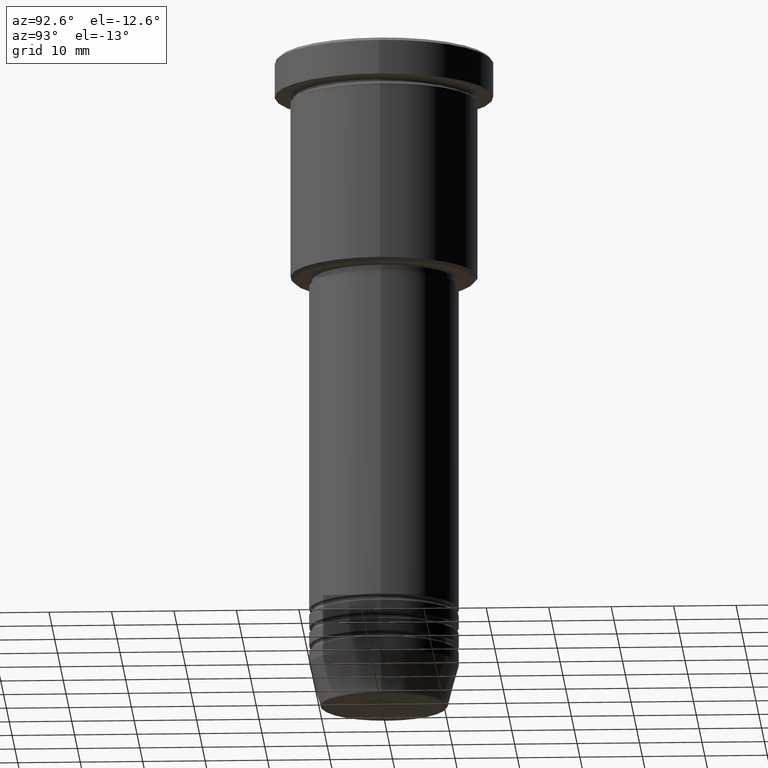
[diagram: clean part render]
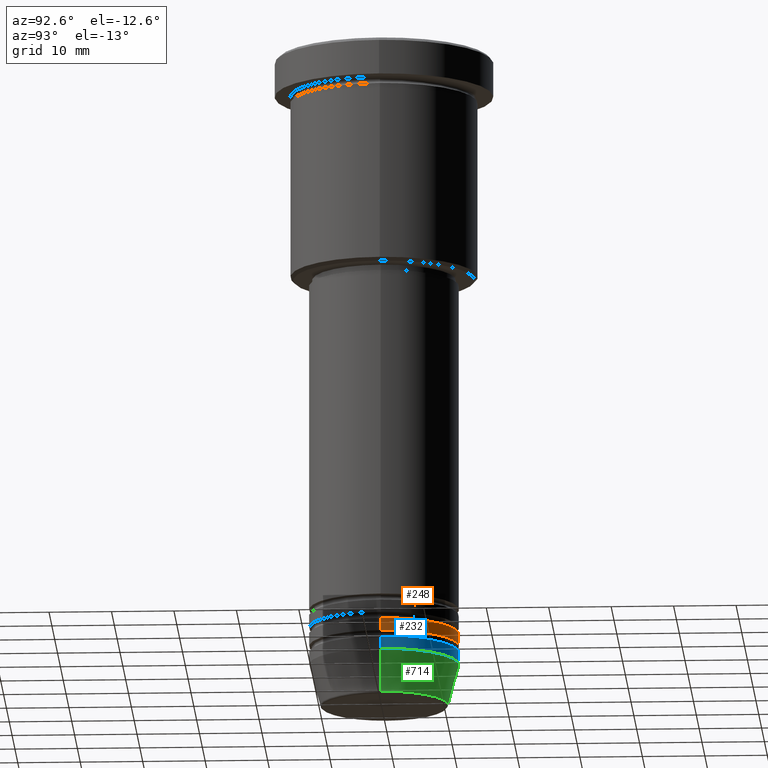
[diagram: same view with three faces highlighted in distinct colors, each labeled with its STEP entity id]
A machine part, auxiliary view with three faces highlighted in distinct colors.
Their STEP definitions:

[orange] entity #248 — the highlighted cylindrical surface (partial cylindrical patch) has radius 12 mm, axis along (-0, -0, 1).
#9 = LINE ( 'NONE', #565, #573 ) ;
#109 = CARTESIAN_POINT ( 'NONE',  ( 12.00000000000000000, 0.000000000000000000, 0.000000000000000000 ) ) ;
#142 = CYLINDRICAL_SURFACE ( 'NONE', #650, 12.00000000000000000 ) ;
#163 = VECTOR ( 'NONE', #380, 1000.000000000000000 ) ;
#172 = EDGE_CURVE ( 'NONE', #918, #391, #1177, .T. ) ;
#246 = CARTESIAN_POINT ( 'NONE',  ( -12.00000000000000000, 1.469576158976823947E-15, -93.99999999999998579 ) ) ;
#248 = ADVANCED_FACE ( 'NONE', ( #959 ), #142, .T. ) ;
#372 = DIRECTION ( 'NONE',  ( -0.000000000000000000, -0.000000000000000000, 1.000000000000000000 ) ) ;
#380 = DIRECTION ( 'NONE',  ( -0.000000000000000000, -0.000000000000000000, 1.000000000000000000 ) ) ;
#391 = VERTEX_POINT ( 'NONE', #246 ) ;
#436 = CARTESIAN_POINT ( 'NONE',  ( -12.00000000000000000, 1.469576158976823947E-15, -95.99999999999997158 ) ) ;
#465 = AXIS2_PLACEMENT_3D ( 'NONE', #828, #1023, #1039 ) ;
#483 = CIRCLE ( 'NONE', #465, 12.00000000000000000 ) ;
#491 = CARTESIAN_POINT ( 'NONE',  ( 0.000000000000000000, 0.000000000000000000, 0.000000000000000000 ) ) ;
#506 = ORIENTED_EDGE ( 'NONE', *, *, #965, .T. ) ;
#565 = CARTESIAN_POINT ( 'NONE',  ( -12.00000000000000000, 1.469576158976823947E-15, 0.000000000000000000 ) ) ;
#573 = VECTOR ( 'NONE', #1119, 1000.000000000000000 ) ;
#592 = DIRECTION ( 'NONE',  ( -0.000000000000000000, -0.000000000000000000, 1.000000000000000000 ) ) ;
#619 = ORIENTED_EDGE ( 'NONE', *, *, #172, .F. ) ;
#625 = VERTEX_POINT ( 'NONE', #436 ) ;
#650 = AXIS2_PLACEMENT_3D ( 'NONE', #491, #592, #879 ) ;
#673 = CARTESIAN_POINT ( 'NONE',  ( 12.00000000000000000, 0.000000000000000000, -93.99999999999998579 ) ) ;
#674 = ORIENTED_EDGE ( 'NONE', *, *, #1134, .F. ) ;
#682 = EDGE_CURVE ( 'NONE', #625, #391, #9, .T. ) ;
#791 = AXIS2_PLACEMENT_3D ( 'NONE', #835, #372, #1102 ) ;
#828 = CARTESIAN_POINT ( 'NONE',  ( 0.000000000000000000, 0.000000000000000000, -95.99999999999997158 ) ) ;
#831 = ORIENTED_EDGE ( 'NONE', *, *, #682, .T. ) ;
#835 = CARTESIAN_POINT ( 'NONE',  ( 0.000000000000000000, 0.000000000000000000, -93.99999999999998579 ) ) ;
#879 = DIRECTION ( 'NONE',  ( 1.000000000000000000, 0.000000000000000000, 0.000000000000000000 ) ) ;
#918 = VERTEX_POINT ( 'NONE', #673 ) ;
#938 = LINE ( 'NONE', #109, #163 ) ;
#959 = FACE_OUTER_BOUND ( 'NONE', #1055, .T. ) ;
#965 = EDGE_CURVE ( 'NONE', #1142, #625, #483, .T. ) ;
#1023 = DIRECTION ( 'NONE',  ( -0.000000000000000000, -0.000000000000000000, 1.000000000000000000 ) ) ;
#1039 = DIRECTION ( 'NONE',  ( 1.000000000000000000, 0.000000000000000000, 0.000000000000000000 ) ) ;
#1055 = EDGE_LOOP ( 'NONE', ( #506, #831, #619, #674 ) ) ;
#1102 = DIRECTION ( 'NONE',  ( 1.000000000000000000, 0.000000000000000000, 0.000000000000000000 ) ) ;
#1107 = CARTESIAN_POINT ( 'NONE',  ( 12.00000000000000000, 0.000000000000000000, -95.99999999999997158 ) ) ;
#1119 = DIRECTION ( 'NONE',  ( -0.000000000000000000, -0.000000000000000000, 1.000000000000000000 ) ) ;
#1134 = EDGE_CURVE ( 'NONE', #1142, #918, #938, .T. ) ;
#1142 = VERTEX_POINT ( 'NONE', #1107 ) ;
#1177 = CIRCLE ( 'NONE', #791, 12.00000000000000000 ) ;

[blue] entity #232 — the highlighted cylindrical surface (partial cylindrical patch) has radius 12 mm, axis along (-0, -0, 1).
#2 = DIRECTION ( 'NONE',  ( -0.000000000000000000, -0.000000000000000000, 1.000000000000000000 ) ) ;
#28 = DIRECTION ( 'NONE',  ( 1.000000000000000000, 0.000000000000000000, 0.000000000000000000 ) ) ;
#198 = CARTESIAN_POINT ( 'NONE',  ( 0.000000000000000000, 0.000000000000000000, -97.00000000000000000 ) ) ;
#231 = VERTEX_POINT ( 'NONE', #693 ) ;
#232 = ADVANCED_FACE ( 'NONE', ( #399 ), #953, .T. ) ;
#271 = LINE ( 'NONE', #627, #738 ) ;
#361 = DIRECTION ( 'NONE',  ( -0.000000000000000000, -0.000000000000000000, 1.000000000000000000 ) ) ;
#385 = AXIS2_PLACEMENT_3D ( 'NONE', #1053, #769, #862 ) ;
#399 = FACE_OUTER_BOUND ( 'NONE', #697, .T. ) ;
#405 = VERTEX_POINT ( 'NONE', #433 ) ;
#433 = CARTESIAN_POINT ( 'NONE',  ( -12.00000000000000000, 1.469576158976823947E-15, -97.00000000000000000 ) ) ;
#435 = EDGE_CURVE ( 'NONE', #231, #405, #830, .T. ) ;
#438 = ORIENTED_EDGE ( 'NONE', *, *, #1048, .T. ) ;
#449 = CARTESIAN_POINT ( 'NONE',  ( 12.00000000000000000, 0.000000000000000000, 0.000000000000000000 ) ) ;
#464 = CARTESIAN_POINT ( 'NONE',  ( 12.00000000000000000, 0.000000000000000000, -99.00000000000000000 ) ) ;
#560 = AXIS2_PLACEMENT_3D ( 'NONE', #766, #1127, #921 ) ;
#627 = CARTESIAN_POINT ( 'NONE',  ( -12.00000000000000000, 1.469576158976823947E-15, 0.000000000000000000 ) ) ;
#642 = EDGE_CURVE ( 'NONE', #939, #231, #804, .T. ) ;
#693 = CARTESIAN_POINT ( 'NONE',  ( 12.00000000000000000, 0.000000000000000000, -97.00000000000000000 ) ) ;
#697 = EDGE_LOOP ( 'NONE', ( #438, #1007, #1116, #917 ) ) ;
#712 = DIRECTION ( 'NONE',  ( -0.000000000000000000, -0.000000000000000000, 1.000000000000000000 ) ) ;
#737 = VECTOR ( 'NONE', #712, 1000.000000000000000 ) ;
#738 = VECTOR ( 'NONE', #361, 1000.000000000000000 ) ;
#741 = CARTESIAN_POINT ( 'NONE',  ( -12.00000000000000000, 1.469576158976823947E-15, -99.00000000000000000 ) ) ;
#752 = VERTEX_POINT ( 'NONE', #741 ) ;
#766 = CARTESIAN_POINT ( 'NONE',  ( 0.000000000000000000, 0.000000000000000000, -99.00000000000000000 ) ) ;
#769 = DIRECTION ( 'NONE',  ( -0.000000000000000000, -0.000000000000000000, 1.000000000000000000 ) ) ;
#794 = AXIS2_PLACEMENT_3D ( 'NONE', #198, #2, #28 ) ;
#804 = LINE ( 'NONE', #449, #737 ) ;
#830 = CIRCLE ( 'NONE', #794, 12.00000000000000000 ) ;
#862 = DIRECTION ( 'NONE',  ( 1.000000000000000000, 0.000000000000000000, 0.000000000000000000 ) ) ;
#917 = ORIENTED_EDGE ( 'NONE', *, *, #642, .F. ) ;
#921 = DIRECTION ( 'NONE',  ( 1.000000000000000000, 0.000000000000000000, 0.000000000000000000 ) ) ;
#939 = VERTEX_POINT ( 'NONE', #464 ) ;
#942 = EDGE_CURVE ( 'NONE', #752, #405, #271, .T. ) ;
#953 = CYLINDRICAL_SURFACE ( 'NONE', #385, 12.00000000000000000 ) ;
#967 = CIRCLE ( 'NONE', #560, 12.00000000000000000 ) ;
#1007 = ORIENTED_EDGE ( 'NONE', *, *, #942, .T. ) ;
#1048 = EDGE_CURVE ( 'NONE', #939, #752, #967, .T. ) ;
#1053 = CARTESIAN_POINT ( 'NONE',  ( 0.000000000000000000, 0.000000000000000000, 0.000000000000000000 ) ) ;
#1116 = ORIENTED_EDGE ( 'NONE', *, *, #435, .F. ) ;
#1127 = DIRECTION ( 'NONE',  ( -0.000000000000000000, -0.000000000000000000, 1.000000000000000000 ) ) ;

[green] entity #714 — the highlighted conical surface has half-angle 15 deg.
#26 = DIRECTION ( 'NONE',  ( 1.000000000000000000, 0.000000000000000000, 0.000000000000000000 ) ) ;
#52 = DIRECTION ( 'NONE',  ( 1.000000000000000000, 0.000000000000000000, 0.000000000000000000 ) ) ;
#76 = CARTESIAN_POINT ( 'NONE',  ( 0.000000000000000000, 0.000000000000000000, -105.6294095225512564 ) ) ;
#138 = CONICAL_SURFACE ( 'NONE', #513, 12.00000000000000000, 0.2617993877991500740 ) ;
#143 = CARTESIAN_POINT ( 'NONE',  ( -12.00000000000000000, 1.469576158976823947E-15, -99.00000000000000000 ) ) ;
#159 = AXIS2_PLACEMENT_3D ( 'NONE', #76, #528, #52 ) ;
#168 = CARTESIAN_POINT ( 'NONE',  ( 12.00000000000000000, 0.000000000000000000, -99.00000000000000000 ) ) ;
#211 = FACE_OUTER_BOUND ( 'NONE', #1029, .T. ) ;
#256 = DIRECTION ( 'NONE',  ( 0.2588190451025213501, 0.000000000000000000, 0.9659258262890680902 ) ) ;
#295 = VECTOR ( 'NONE', #256, 1000.000000000000000 ) ;
#309 = EDGE_CURVE ( 'NONE', #637, #1161, #611, .T. ) ;
#348 = LINE ( 'NONE', #168, #295 ) ;
#373 = EDGE_CURVE ( 'NONE', #637, #939, #348, .T. ) ;
#376 = ORIENTED_EDGE ( 'NONE', *, *, #545, .T. ) ;
#393 = ORIENTED_EDGE ( 'NONE', *, *, #309, .T. ) ;
#400 = LINE ( 'NONE', #143, #1146 ) ;
#416 = DIRECTION ( 'NONE',  ( -0.2588190451025213501, 3.169619151431772337E-17, 0.9659258262890680902 ) ) ;
#464 = CARTESIAN_POINT ( 'NONE',  ( 12.00000000000000000, 0.000000000000000000, -99.00000000000000000 ) ) ;
#513 = AXIS2_PLACEMENT_3D ( 'NONE', #1099, #854, #26 ) ;
#528 = DIRECTION ( 'NONE',  ( -0.000000000000000000, -0.000000000000000000, 1.000000000000000000 ) ) ;
#545 = EDGE_CURVE ( 'NONE', #1161, #752, #400, .T. ) ;
#560 = AXIS2_PLACEMENT_3D ( 'NONE', #766, #1127, #921 ) ;
#611 = CIRCLE ( 'NONE', #159, 10.22365507213719305 ) ;
#637 = VERTEX_POINT ( 'NONE', #811 ) ;
#675 = CARTESIAN_POINT ( 'NONE',  ( -10.22365507213719305, 1.360806402472382744E-15, -105.6294095225512564 ) ) ;
#714 = ADVANCED_FACE ( 'NONE', ( #211 ), #138, .T. ) ;
#741 = CARTESIAN_POINT ( 'NONE',  ( -12.00000000000000000, 1.469576158976823947E-15, -99.00000000000000000 ) ) ;
#752 = VERTEX_POINT ( 'NONE', #741 ) ;
#766 = CARTESIAN_POINT ( 'NONE',  ( 0.000000000000000000, 0.000000000000000000, -99.00000000000000000 ) ) ;
#811 = CARTESIAN_POINT ( 'NONE',  ( 10.22365507213719305, 0.000000000000000000, -105.6294095225512564 ) ) ;
#854 = DIRECTION ( 'NONE',  ( -0.000000000000000000, -0.000000000000000000, 1.000000000000000000 ) ) ;
#880 = ORIENTED_EDGE ( 'NONE', *, *, #373, .F. ) ;
#921 = DIRECTION ( 'NONE',  ( 1.000000000000000000, 0.000000000000000000, 0.000000000000000000 ) ) ;
#939 = VERTEX_POINT ( 'NONE', #464 ) ;
#967 = CIRCLE ( 'NONE', #560, 12.00000000000000000 ) ;
#1029 = EDGE_LOOP ( 'NONE', ( #393, #376, #1084, #880 ) ) ;
#1048 = EDGE_CURVE ( 'NONE', #939, #752, #967, .T. ) ;
#1084 = ORIENTED_EDGE ( 'NONE', *, *, #1048, .F. ) ;
#1099 = CARTESIAN_POINT ( 'NONE',  ( 0.000000000000000000, 0.000000000000000000, -99.00000000000000000 ) ) ;
#1127 = DIRECTION ( 'NONE',  ( -0.000000000000000000, -0.000000000000000000, 1.000000000000000000 ) ) ;
#1146 = VECTOR ( 'NONE', #416, 1000.000000000000000 ) ;
#1161 = VERTEX_POINT ( 'NONE', #675 ) ;